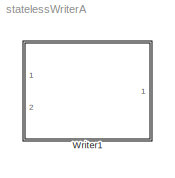
MODEL statelessWriterA
KIND model
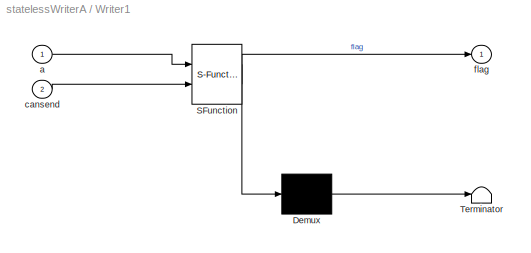
BLOCK [SubSystem] Writer1
  ErrorFcn = Stateflow.Translate.translate
  PermitHierarchicalResolution = ExplicitOnly
  Ports = [2, 1]
  RequestExecContextInheritance = off
  SFBlockType = Chart
  SID = 1
  TreatAsAtomicUnit = on
BLOCK [Demux] Writer1/ Demux 
  Outputs = 1
  Ports = [1, 1]
  SID = 1::92
BLOCK [S-Function] Writer1/ SFunction 
  EnableBusSupport = off
  FunctionName = sf_sfun
  PortCounts = [2 2]
  Ports = [2, 2]
  SFcnIsStateOwnerBlock = off
  SFunctionDeploymentMode = off
  SID = 1::91
  Tag = Stateflow S-Function statelessWriterA 3
BLOCK [Terminator] Writer1/ Terminator 
  SID = 1::93
BLOCK [Inport] Writer1/a
  IconDisplay = Port number
  SID = 1::81
BLOCK [Inport] Writer1/cansend
  IconDisplay = Port number
  Port = 2
  SID = 1::90
BLOCK [Outport] Writer1/flag
  IconDisplay = Port number
  SID = 1::88
LINE Writer1/ Demux :1 -> Writer1/ Terminator :1
LINE Writer1/ SFunction :1 -> Writer1/ Demux :1
LINE Writer1/ SFunction :2 -> Writer1/flag:1
LINE Writer1/a:1 -> Writer1/ SFunction :1
LINE Writer1/cansend:1 -> Writer1/ SFunction :2
CHART Writer1 states=2 transitions=4
  STATE_LABEL 'pushing\\nduring:flag=0'
  STATE_LABEL 'idle\\nduring:flag=1;'
